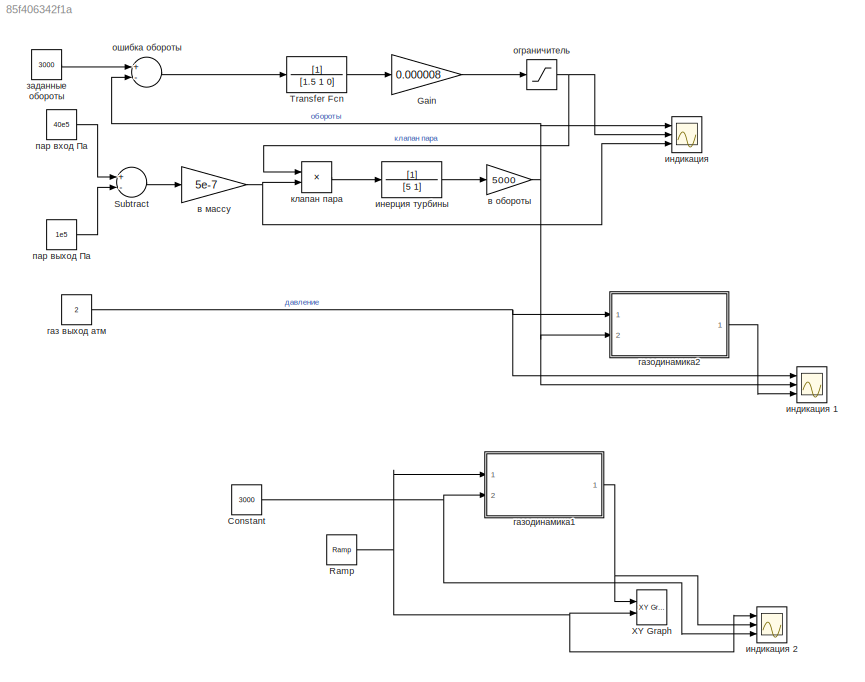
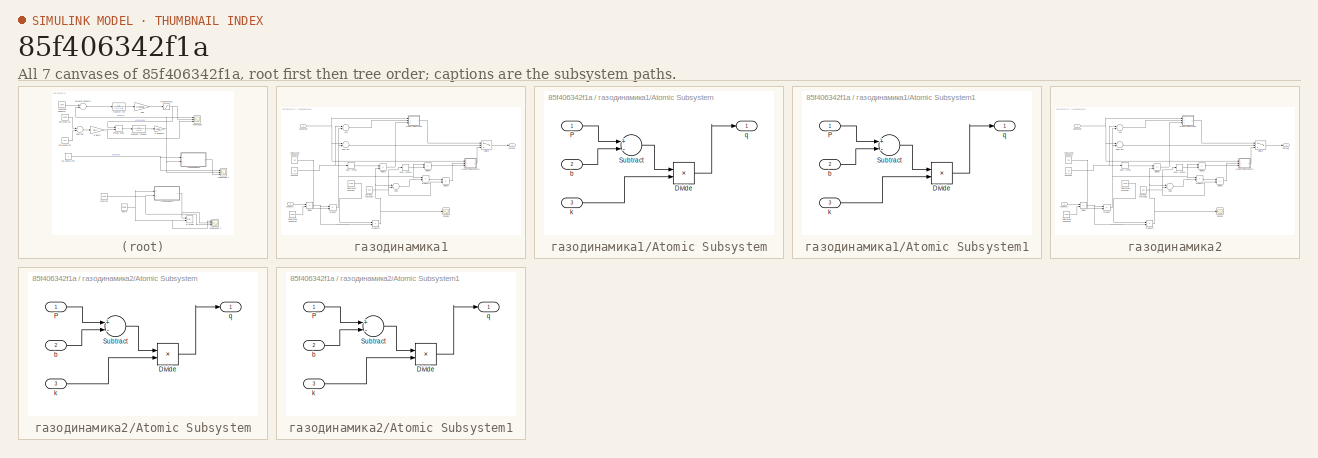
[diagram: thumbnail index - all 7 canvases of the model, root first then tree order]
MODEL slx_85f406342f1a
KIND model
BLOCK [Constant] Constant
  Value = 3000
BLOCK [Gain] Gain
  Gain = 0.000008
  OutDataTypeStr = Inherit: Inherit via internal rule
  ParamDataTypeStr = Inherit: Inherit via internal rule
  SaturateOnIntegerOverflow = off
BLOCK [Reference] Ramp  REF=simulink/Sources/Ramp
  Ports = [0, 1]
  SourceBlock = simulink/Sources/Ramp
  SourceType = Ramp
  VectorParams1D = on
  X0 = 1
  slope = 1
  start = 0
BLOCK [Sum] Subtract
  InputSameDT = off
  Inputs = +-
  OutDataTypeStr = Inherit: Inherit via internal rule
  Ports = [2, 1]
  SaturateOnIntegerOverflow = off
BLOCK [TransferFcn] Transfer Fcn
  Denominator = [1.5 1 0]
BLOCK [Reference] XY Graph  REF=simulink/Sinks/XY Graph
  Ports = [2]
  SourceBlock = simulink/Sinks/XY Graph
  SourceType = XY scope.
  st = -1
  xmax = 3000
  xmin = 0
  ymax = 100
  ymin = 0
BLOCK [Gain] в массу
  Gain = 5e-7
  OutDataTypeStr = Inherit: Inherit via internal rule
  ParamDataTypeStr = Inherit: Inherit via internal rule
  SaturateOnIntegerOverflow = off
BLOCK [Gain] в обороты
  Gain = 5000
  OutDataTypeStr = Inherit: Inherit via internal rule
  ParamDataTypeStr = Inherit: Inherit via internal rule
  SaturateOnIntegerOverflow = off
BLOCK [Constant] газ выход атм
  Value = 2
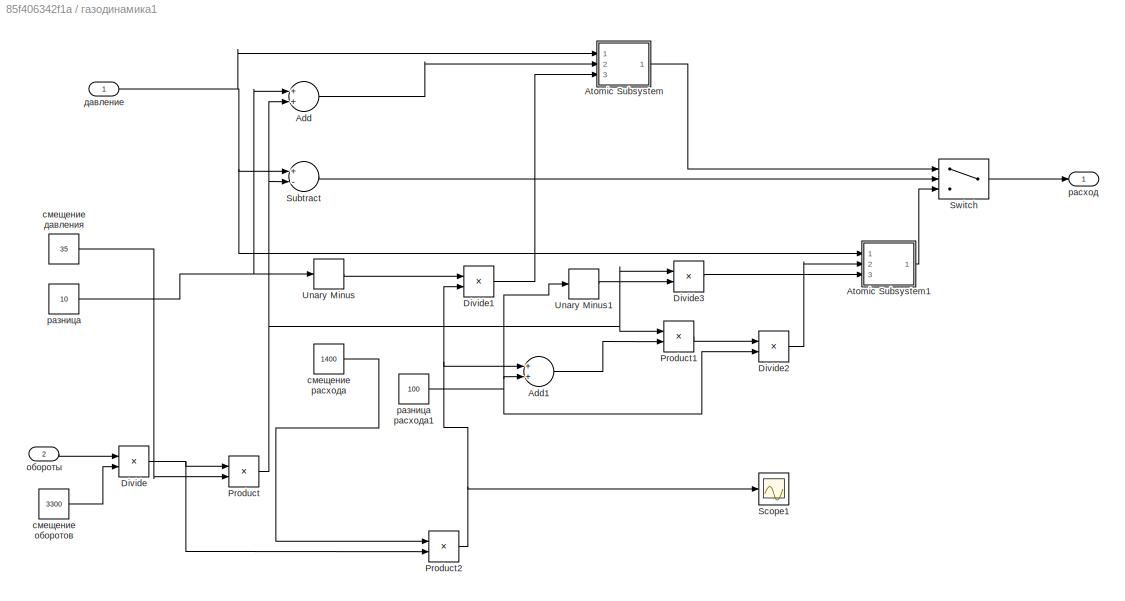
BLOCK [SubSystem] газодинамика1
  Ports = [2, 1]
  RequestExecContextInheritance = off
  TreatAsAtomicUnit = on
BLOCK [Sum] газодинамика1/Add
  InputSameDT = off
  OutDataTypeStr = Inherit: Inherit via internal rule
  Ports = [2, 1]
  SaturateOnIntegerOverflow = off
BLOCK [Sum] газодинамика1/Add1
  InputSameDT = off
  OutDataTypeStr = Inherit: Inherit via internal rule
  Ports = [2, 1]
  SaturateOnIntegerOverflow = off
BLOCK [SubSystem] газодинамика1/Atomic Subsystem
  Ports = [3, 1]
  RequestExecContextInheritance = off
  TreatAsAtomicUnit = on
BLOCK [Product] газодинамика1/Atomic Subsystem/Divide
  InputSameDT = off
  Inputs = */
  OutDataTypeStr = Inherit: Inherit via internal rule
  Ports = [2, 1]
  RndMeth = Floor
  SaturateOnIntegerOverflow = off
BLOCK [Inport] газодинамика1/Atomic Subsystem/P
  IconDisplay = Port number
BLOCK [Sum] газодинамика1/Atomic Subsystem/Subtract
  InputSameDT = off
  Inputs = +-
  OutDataTypeStr = Inherit: Inherit via internal rule
  Ports = [2, 1]
  SaturateOnIntegerOverflow = off
BLOCK [Inport] газодинамика1/Atomic Subsystem/b
  IconDisplay = Port number
  Port = 2
BLOCK [Inport] газодинамика1/Atomic Subsystem/k
  IconDisplay = Port number
  Port = 3
BLOCK [Outport] газодинамика1/Atomic Subsystem/q
  IconDisplay = Port number
BLOCK [SubSystem] газодинамика1/Atomic Subsystem1
  Ports = [3, 1]
  RequestExecContextInheritance = off
  TreatAsAtomicUnit = on
BLOCK [Product] газодинамика1/Atomic Subsystem1/Divide
  InputSameDT = off
  Inputs = */
  OutDataTypeStr = Inherit: Inherit via internal rule
  Ports = [2, 1]
  RndMeth = Floor
  SaturateOnIntegerOverflow = off
BLOCK [Inport] газодинамика1/Atomic Subsystem1/P
  IconDisplay = Port number
BLOCK [Sum] газодинамика1/Atomic Subsystem1/Subtract
  InputSameDT = off
  Inputs = +-
  OutDataTypeStr = Inherit: Inherit via internal rule
  Ports = [2, 1]
  SaturateOnIntegerOverflow = off
BLOCK [Inport] газодинамика1/Atomic Subsystem1/b
  IconDisplay = Port number
  Port = 2
BLOCK [Inport] газодинамика1/Atomic Subsystem1/k
  IconDisplay = Port number
  Port = 3
BLOCK [Outport] газодинамика1/Atomic Subsystem1/q
  IconDisplay = Port number
BLOCK [Product] газодинамика1/Divide
  InputSameDT = off
  Inputs = */
  OutDataTypeStr = Inherit: Inherit via internal rule
  Ports = [2, 1]
  RndMeth = Floor
  SaturateOnIntegerOverflow = off
BLOCK [Product] газодинамика1/Divide1
  InputSameDT = off
  Inputs = */
  OutDataTypeStr = Inherit: Inherit via internal rule
  Ports = [2, 1]
  RndMeth = Floor
  SaturateOnIntegerOverflow = off
BLOCK [Product] газодинамика1/Divide2
  InputSameDT = off
  Inputs = */
  OutDataTypeStr = Inherit: Inherit via internal rule
  Ports = [2, 1]
  RndMeth = Floor
  SaturateOnIntegerOverflow = off
BLOCK [Product] газодинамика1/Divide3
  InputSameDT = off
  Inputs = */
  OutDataTypeStr = Inherit: Inherit via internal rule
  Ports = [2, 1]
  RndMeth = Floor
  SaturateOnIntegerOverflow = off
BLOCK [Product] газодинамика1/Product
  InputSameDT = off
  OutDataTypeStr = Inherit: Inherit via internal rule
  Ports = [2, 1]
  RndMeth = Floor
  SaturateOnIntegerOverflow = off
BLOCK [Product] газодинамика1/Product1
  InputSameDT = off
  OutDataTypeStr = Inherit: Inherit via internal rule
  Ports = [2, 1]
  RndMeth = Floor
  SaturateOnIntegerOverflow = off
BLOCK [Product] газодинамика1/Product2
  InputSameDT = off
  OutDataTypeStr = Inherit: Inherit via internal rule
  Ports = [2, 1]
  RndMeth = Floor
  SaturateOnIntegerOverflow = off
BLOCK [Scope] газодинамика1/Scope1
  DataFormat = StructureWithTime
  Floating = off
  NumInputPorts = 1
  Ports = [1]
  SampleTime = 0
  SaveName = ScopeData5
  ShowLegends = off
BLOCK [Sum] газодинамика1/Subtract
  InputSameDT = off
  Inputs = +-
  OutDataTypeStr = Inherit: Inherit via internal rule
  Ports = [2, 1]
  SaturateOnIntegerOverflow = off
BLOCK [Switch] газодинамика1/Switch
  Criteria = u2 > Threshold
  InputSameDT = off
  SaturateOnIntegerOverflow = off
BLOCK [UnaryMinus] газодинамика1/Unary Minus
BLOCK [UnaryMinus] газодинамика1/Unary Minus1
BLOCK [Inport] газодинамика1/давление
  IconDisplay = Port number
BLOCK [Inport] газодинамика1/обороты
  IconDisplay = Port number
  Port = 2
BLOCK [Constant] газодинамика1/разница
  Value = 10
BLOCK [Constant] газодинамика1/разница расхода1
  Value = 100
BLOCK [Outport] газодинамика1/расход
  IconDisplay = Port number
BLOCK [Constant] газодинамика1/смещение давления
  Value = 35
BLOCK [Constant] газодинамика1/смещение оборотов 
  Value = 3300
BLOCK [Constant] газодинамика1/смещение расхода
  Value = 1400
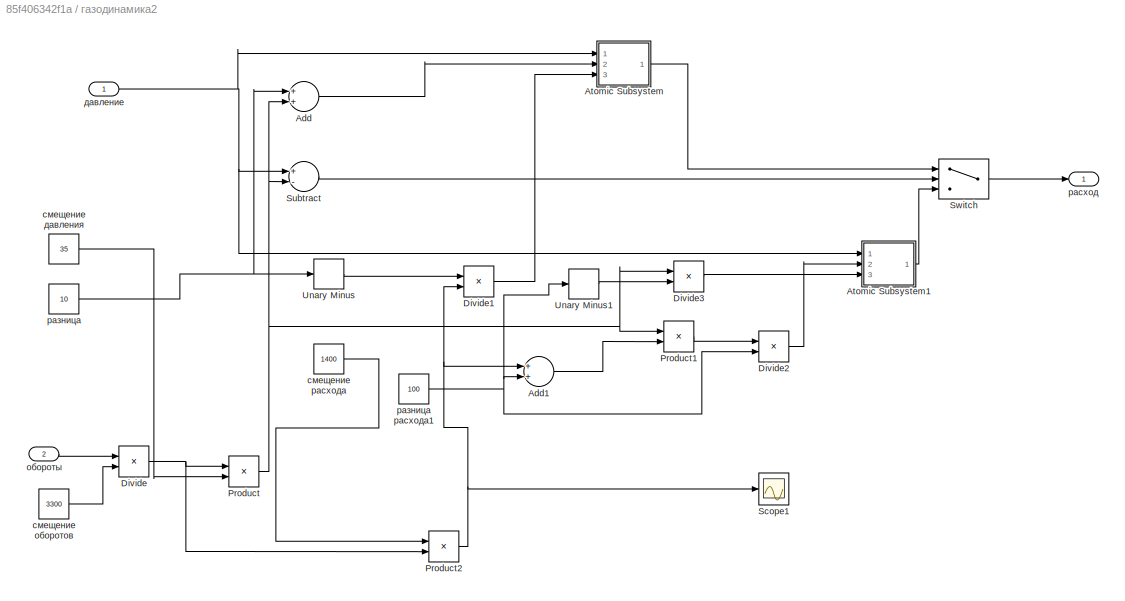
BLOCK [SubSystem] газодинамика2
  Ports = [2, 1]
  RequestExecContextInheritance = off
  TreatAsAtomicUnit = on
BLOCK [Sum] газодинамика2/Add
  InputSameDT = off
  OutDataTypeStr = Inherit: Inherit via internal rule
  Ports = [2, 1]
  SaturateOnIntegerOverflow = off
BLOCK [Sum] газодинамика2/Add1
  InputSameDT = off
  OutDataTypeStr = Inherit: Inherit via internal rule
  Ports = [2, 1]
  SaturateOnIntegerOverflow = off
BLOCK [SubSystem] газодинамика2/Atomic Subsystem
  Ports = [3, 1]
  RequestExecContextInheritance = off
  TreatAsAtomicUnit = on
BLOCK [Product] газодинамика2/Atomic Subsystem/Divide
  InputSameDT = off
  Inputs = */
  OutDataTypeStr = Inherit: Inherit via internal rule
  Ports = [2, 1]
  RndMeth = Floor
  SaturateOnIntegerOverflow = off
BLOCK [Inport] газодинамика2/Atomic Subsystem/P
  IconDisplay = Port number
BLOCK [Sum] газодинамика2/Atomic Subsystem/Subtract
  InputSameDT = off
  Inputs = +-
  OutDataTypeStr = Inherit: Inherit via internal rule
  Ports = [2, 1]
  SaturateOnIntegerOverflow = off
BLOCK [Inport] газодинамика2/Atomic Subsystem/b
  IconDisplay = Port number
  Port = 2
BLOCK [Inport] газодинамика2/Atomic Subsystem/k
  IconDisplay = Port number
  Port = 3
BLOCK [Outport] газодинамика2/Atomic Subsystem/q
  IconDisplay = Port number
BLOCK [SubSystem] газодинамика2/Atomic Subsystem1
  Ports = [3, 1]
  RequestExecContextInheritance = off
  TreatAsAtomicUnit = on
BLOCK [Product] газодинамика2/Atomic Subsystem1/Divide
  InputSameDT = off
  Inputs = */
  OutDataTypeStr = Inherit: Inherit via internal rule
  Ports = [2, 1]
  RndMeth = Floor
  SaturateOnIntegerOverflow = off
BLOCK [Inport] газодинамика2/Atomic Subsystem1/P
  IconDisplay = Port number
BLOCK [Sum] газодинамика2/Atomic Subsystem1/Subtract
  InputSameDT = off
  Inputs = +-
  OutDataTypeStr = Inherit: Inherit via internal rule
  Ports = [2, 1]
  SaturateOnIntegerOverflow = off
BLOCK [Inport] газодинамика2/Atomic Subsystem1/b
  IconDisplay = Port number
  Port = 2
BLOCK [Inport] газодинамика2/Atomic Subsystem1/k
  IconDisplay = Port number
  Port = 3
BLOCK [Outport] газодинамика2/Atomic Subsystem1/q
  IconDisplay = Port number
BLOCK [Product] газодинамика2/Divide
  InputSameDT = off
  Inputs = */
  OutDataTypeStr = Inherit: Inherit via internal rule
  Ports = [2, 1]
  RndMeth = Floor
  SaturateOnIntegerOverflow = off
BLOCK [Product] газодинамика2/Divide1
  InputSameDT = off
  Inputs = */
  OutDataTypeStr = Inherit: Inherit via internal rule
  Ports = [2, 1]
  RndMeth = Floor
  SaturateOnIntegerOverflow = off
BLOCK [Product] газодинамика2/Divide2
  InputSameDT = off
  Inputs = */
  OutDataTypeStr = Inherit: Inherit via internal rule
  Ports = [2, 1]
  RndMeth = Floor
  SaturateOnIntegerOverflow = off
BLOCK [Product] газодинамика2/Divide3
  InputSameDT = off
  Inputs = */
  OutDataTypeStr = Inherit: Inherit via internal rule
  Ports = [2, 1]
  RndMeth = Floor
  SaturateOnIntegerOverflow = off
BLOCK [Product] газодинамика2/Product
  InputSameDT = off
  OutDataTypeStr = Inherit: Inherit via internal rule
  Ports = [2, 1]
  RndMeth = Floor
  SaturateOnIntegerOverflow = off
BLOCK [Product] газодинамика2/Product1
  InputSameDT = off
  OutDataTypeStr = Inherit: Inherit via internal rule
  Ports = [2, 1]
  RndMeth = Floor
  SaturateOnIntegerOverflow = off
BLOCK [Product] газодинамика2/Product2
  InputSameDT = off
  OutDataTypeStr = Inherit: Inherit via internal rule
  Ports = [2, 1]
  RndMeth = Floor
  SaturateOnIntegerOverflow = off
BLOCK [Scope] газодинамика2/Scope1
  DataFormat = StructureWithTime
  Floating = off
  NumInputPorts = 1
  Ports = [1]
  SampleTime = 0
  SaveName = ScopeData5
  ShowLegends = off
BLOCK [Sum] газодинамика2/Subtract
  InputSameDT = off
  Inputs = +-
  OutDataTypeStr = Inherit: Inherit via internal rule
  Ports = [2, 1]
  SaturateOnIntegerOverflow = off
BLOCK [Switch] газодинамика2/Switch
  Criteria = u2 > Threshold
  InputSameDT = off
  SaturateOnIntegerOverflow = off
BLOCK [UnaryMinus] газодинамика2/Unary Minus
BLOCK [UnaryMinus] газодинамика2/Unary Minus1
BLOCK [Inport] газодинамика2/давление
  IconDisplay = Port number
BLOCK [Inport] газодинамика2/обороты
  IconDisplay = Port number
  Port = 2
BLOCK [Constant] газодинамика2/разница
  Value = 10
BLOCK [Constant] газодинамика2/разница расхода1
  Value = 100
BLOCK [Outport] газодинамика2/расход
  IconDisplay = Port number
BLOCK [Constant] газодинамика2/смещение давления
  Value = 35
BLOCK [Constant] газодинамика2/смещение оборотов 
  Value = 3300
BLOCK [Constant] газодинамика2/смещение расхода
  Value = 1400
BLOCK [Constant] заданные обороты
  Value = 3000
BLOCK [Scope] индикация 
  DataFormat = StructureWithTime
  Floating = off
  LegendLocations = 0.87142     0.92072    0.098633     0.02828\n0.85189     0.60918     0.11816     0.02828\n0.87435     0.29903    0.095703     0.02828
  NumInputPorts = 3
  Ports = [3]
  SampleTime = 0
  ShowLegends = on
  YMax = 4250~5~5
  YMin = 0~-5~-5
BLOCK [Scope] индикация 1
  DataFormat = StructureWithTime
  Floating = off
  LegendLocations = 0.92908     0.94198     0.10352     0.02828\n0.93168     0.62412    0.098633     0.02828\n0.91293     0.30727     0.13379     0.02828
  NumInputPorts = 3
  Ports = [3]
  SampleTime = 0
  SaveName = ScopeData1
  ShowLegends = on
  YMax = 5~5~5
  YMin = -5~-5~-5
BLOCK [Scope] индикация 2
  DataFormat = StructureWithTime
  Floating = off
  LegendLocations = 0.84532      0.8752     0.11451    0.043355\n0.77741     0.57672     0.18242    0.043355\n0.82668     0.27825     0.13316    0.043355
  NumInputPorts = 3
  Ports = [3]
  SampleTime = 0
  SaveName = ScopeData2
  ShowLegends = on
  YMax = 5~5~5
  YMin = -5~-5~-5
BLOCK [TransferFcn] инерция турбины
  Denominator = [5 1]
BLOCK [Product] клапан пара
  InputSameDT = off
  OutDataTypeStr = Inherit: Inherit via internal rule
  Ports = [2, 1]
  RndMeth = Floor
  SaturateOnIntegerOverflow = off
BLOCK [Saturate] ограничитель
  InputPortMap = u0
  LowerLimit = 0
  Ports = [1, 1]
  UpperLimit = 1
BLOCK [Sum] ошибка обороты
  InputSameDT = off
  Inputs = +-
  OutDataTypeStr = Inherit: Inherit via internal rule
  Ports = [2, 1]
  SaturateOnIntegerOverflow = off
BLOCK [Constant] пар вход Па
  Value = 40e5
BLOCK [Constant] пар выход Па
  Value = 1e5
NET Constant:1 -> газодинамика1:2, индикация 2:3
LINE Gain:1 -> ограничитель:1
NET Ramp:1 -> XY Graph:2, газодинамика1:1, индикация 2:1
LINE Subtract:1 -> в массу:1
LINE Transfer Fcn:1 -> Gain:1
NET в массу:1 -> индикация :3, клапан пара:2
NET в обороты:1 -> газодинамика2:2, индикация 1:2, индикация :1, ошибка обороты:2
NET газ выход атм:1 -> газодинамика2:1, индикация 1:1
LINE газодинамика1/Add1:1 -> газодинамика1/Product1:2
LINE газодинамика1/Add:1 -> газодинамика1/Atomic Subsystem:2
LINE газодинамика1/Atomic Subsystem/Divide:1 -> газодинамика1/Atomic Subsystem/q:1
LINE газодинамика1/Atomic Subsystem/P:1 -> газодинамика1/Atomic Subsystem/Subtract:1
LINE газодинамика1/Atomic Subsystem/Subtract:1 -> газодинамика1/Atomic Subsystem/Divide:1
LINE газодинамика1/Atomic Subsystem/b:1 -> газодинамика1/Atomic Subsystem/Subtract:2
LINE газодинамика1/Atomic Subsystem/k:1 -> газодинамика1/Atomic Subsystem/Divide:2
LINE газодинамика1/Atomic Subsystem1/Divide:1 -> газодинамика1/Atomic Subsystem1/q:1
LINE газодинамика1/Atomic Subsystem1/P:1 -> газодинамика1/Atomic Subsystem1/Subtract:1
LINE газодинамика1/Atomic Subsystem1/Subtract:1 -> газодинамика1/Atomic Subsystem1/Divide:1
LINE газодинамика1/Atomic Subsystem1/b:1 -> газодинамика1/Atomic Subsystem1/Subtract:2
LINE газодинамика1/Atomic Subsystem1/k:1 -> газодинамика1/Atomic Subsystem1/Divide:2
LINE газодинамика1/Atomic Subsystem1:1 -> газодинамика1/Switch:3
LINE газодинамика1/Atomic Subsystem:1 -> газодинамика1/Switch:1
LINE газодинамика1/Divide1:1 -> газодинамика1/Atomic Subsystem:3
LINE газодинамика1/Divide2:1 -> газодинамика1/Atomic Subsystem1:2
LINE газодинамика1/Divide3:1 -> газодинамика1/Atomic Subsystem1:3
NET газодинамика1/Divide:1 -> газодинамика1/Product2:2, газодинамика1/Product:1
LINE газодинамика1/Product1:1 -> газодинамика1/Divide2:1
NET газодинамика1/Product2:1 -> газодинамика1/Add1:1, газодинамика1/Divide1:2, газодинамика1/Scope1:1
NET газодинамика1/Product:1 -> газодинамика1/Add:2, газодинамика1/Divide3:1, газодинамика1/Product1:1, газодинамика1/Subtract:2
LINE газодинамика1/Subtract:1 -> газодинамика1/Switch:2
LINE газодинамика1/Switch:1 -> газодинамика1/расход:1
LINE газодинамика1/Unary Minus1:1 -> газодинамика1/Divide3:2
LINE газодинамика1/Unary Minus:1 -> газодинамика1/Divide1:1
NET газодинамика1/давление:1 -> газодинамика1/Atomic Subsystem1:1, газодинамика1/Atomic Subsystem:1, газодинамика1/Subtract:1
LINE газодинамика1/обороты:1 -> газодинамика1/Divide:1
NET газодинамика1/разница расхода1:1 -> газодинамика1/Add1:2, газодинамика1/Divide2:2, газодинамика1/Unary Minus1:1
NET газодинамика1/разница:1 -> газодинамика1/Add:1, газодинамика1/Unary Minus:1
LINE газодинамика1/смещение давления:1 -> газодинамика1/Product:2
LINE газодинамика1/смещение оборотов :1 -> газодинамика1/Divide:2
LINE газодинамика1/смещение расхода:1 -> газодинамика1/Product2:1
NET газодинамика1:1 -> XY Graph:1, индикация 2:2
LINE газодинамика2/Add1:1 -> газодинамика2/Product1:2
LINE газодинамика2/Add:1 -> газодинамика2/Atomic Subsystem:2
LINE газодинамика2/Atomic Subsystem/Divide:1 -> газодинамика2/Atomic Subsystem/q:1
LINE газодинамика2/Atomic Subsystem/P:1 -> газодинамика2/Atomic Subsystem/Subtract:1
LINE газодинамика2/Atomic Subsystem/Subtract:1 -> газодинамика2/Atomic Subsystem/Divide:1
LINE газодинамика2/Atomic Subsystem/b:1 -> газодинамика2/Atomic Subsystem/Subtract:2
LINE газодинамика2/Atomic Subsystem/k:1 -> газодинамика2/Atomic Subsystem/Divide:2
LINE газодинамика2/Atomic Subsystem1/Divide:1 -> газодинамика2/Atomic Subsystem1/q:1
LINE газодинамика2/Atomic Subsystem1/P:1 -> газодинамика2/Atomic Subsystem1/Subtract:1
LINE газодинамика2/Atomic Subsystem1/Subtract:1 -> газодинамика2/Atomic Subsystem1/Divide:1
LINE газодинамика2/Atomic Subsystem1/b:1 -> газодинамика2/Atomic Subsystem1/Subtract:2
LINE газодинамика2/Atomic Subsystem1/k:1 -> газодинамика2/Atomic Subsystem1/Divide:2
LINE газодинамика2/Atomic Subsystem1:1 -> газодинамика2/Switch:3
LINE газодинамика2/Atomic Subsystem:1 -> газодинамика2/Switch:1
LINE газодинамика2/Divide1:1 -> газодинамика2/Atomic Subsystem:3
LINE газодинамика2/Divide2:1 -> газодинамика2/Atomic Subsystem1:2
LINE газодинамика2/Divide3:1 -> газодинамика2/Atomic Subsystem1:3
NET газодинамика2/Divide:1 -> газодинамика2/Product2:2, газодинамика2/Product:1
LINE газодинамика2/Product1:1 -> газодинамика2/Divide2:1
NET газодинамика2/Product2:1 -> газодинамика2/Add1:1, газодинамика2/Divide1:2, газодинамика2/Scope1:1
NET газодинамика2/Product:1 -> газодинамика2/Add:2, газодинамика2/Divide3:1, газодинамика2/Product1:1, газодинамика2/Subtract:2
LINE газодинамика2/Subtract:1 -> газодинамика2/Switch:2
LINE газодинамика2/Switch:1 -> газодинамика2/расход:1
LINE газодинамика2/Unary Minus1:1 -> газодинамика2/Divide3:2
LINE газодинамика2/Unary Minus:1 -> газодинамика2/Divide1:1
NET газодинамика2/давление:1 -> газодинамика2/Atomic Subsystem1:1, газодинамика2/Atomic Subsystem:1, газодинамика2/Subtract:1
LINE газодинамика2/обороты:1 -> газодинамика2/Divide:1
NET газодинамика2/разница расхода1:1 -> газодинамика2/Add1:2, газодинамика2/Divide2:2, газодинамика2/Unary Minus1:1
NET газодинамика2/разница:1 -> газодинамика2/Add:1, газодинамика2/Unary Minus:1
LINE газодинамика2/смещение давления:1 -> газодинамика2/Product:2
LINE газодинамика2/смещение оборотов :1 -> газодинамика2/Divide:2
LINE газодинамика2/смещение расхода:1 -> газодинамика2/Product2:1
LINE газодинамика2:1 -> индикация 1:3
LINE заданные обороты:1 -> ошибка обороты:1
LINE инерция турбины:1 -> в обороты:1
LINE клапан пара:1 -> инерция турбины:1
NET ограничитель:1 -> индикация :2, клапан пара:1
LINE ошибка обороты:1 -> Transfer Fcn:1
LINE пар вход Па:1 -> Subtract:1
LINE пар выход Па:1 -> Subtract:2
note: NET lines group one-source signal fan-out (src -> all destinations, sorted); 1:1 wires keep LINE
